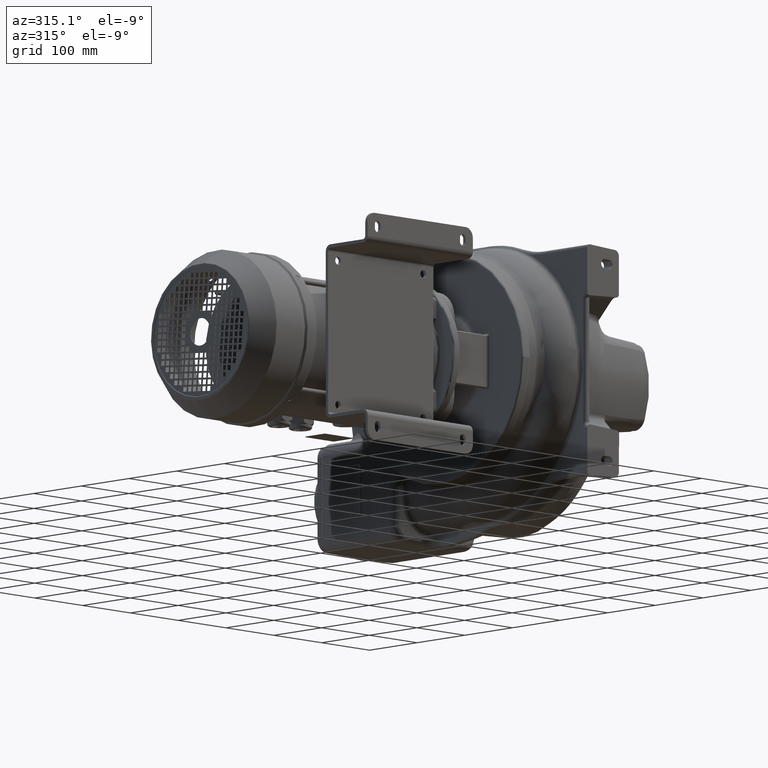
[diagram: clean part render]
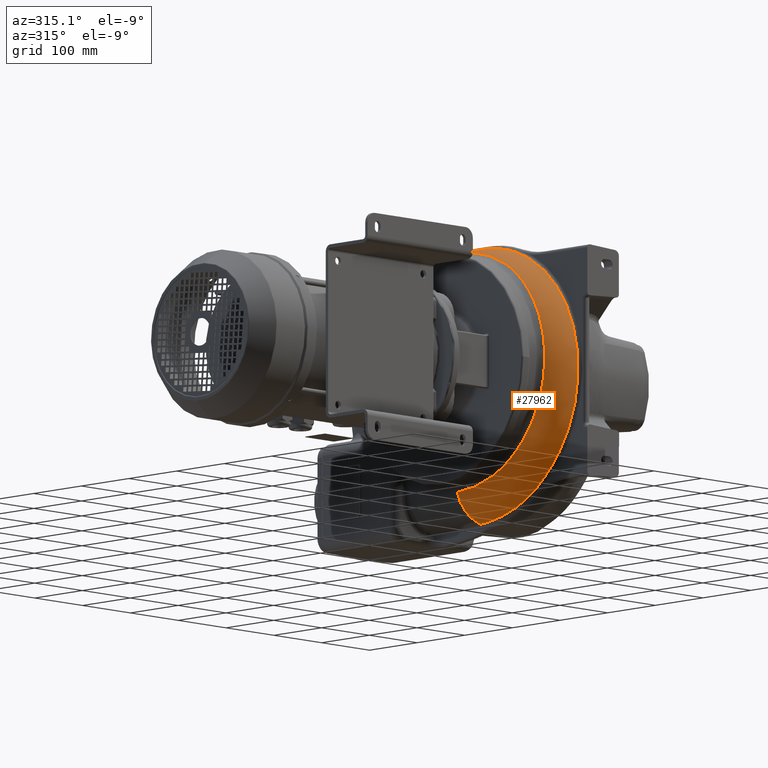
[diagram: same view with one face highlighted and labeled with its STEP entity id]
A machine part, auxiliary view. The second image highlights one B-rep face of the part: STEP entity #27962.
In plain terms, the highlighted face is a freeform B-spline surface patch.
Its self-contained STEP definition (entity closure, byte-faithful):
#3715=CARTESIAN_POINT('',(-9.416684251879E1,2.198767022094E2,
-1.995254930212E2));
#3716=CARTESIAN_POINT('',(-9.361539147830E1,2.198599892614E2,
-2.012862758722E2));
#3717=CARTESIAN_POINT('',(-9.159984907690E1,2.198035409127E2,
-2.068400769254E2));
#3718=CARTESIAN_POINT('',(-8.688004971270E1,2.197164609426E2,
-2.156669233408E2));
#3719=CARTESIAN_POINT('',(-7.911717179944E1,2.195961515524E2,
-2.251198556505E2));
#3720=CARTESIAN_POINT('',(-6.965939572615E1,2.194748036736E2,
-2.328752383668E2));
#3721=CARTESIAN_POINT('',(-5.886928424299E1,2.193577415574E2,
-2.386352686991E2));
#3722=CARTESIAN_POINT('',(-5.044815780028E1,2.193118446787E2,
-2.411865120035E2));
#3723=CARTESIAN_POINT('',(-4.581760230919E1,2.192862955119E2,
-2.420309093590E2));
#3724=CARTESIAN_POINT('',(-4.517971400711E1,2.192831059374E2,
-2.421368989397E2));
#3813=CARTESIAN_POINT('',(-4.520057652036E1,2.012945648818E2,
-2.403621677771E2));
#3814=CARTESIAN_POINT('',(-4.519806872358E1,2.033799629870E2,
-2.406536483446E2));
#3815=CARTESIAN_POINT('',(-4.519322657947E1,2.074877189616E2,
-2.411671713307E2));
#3816=CARTESIAN_POINT('',(-4.518565136657E1,2.134717536841E2,
-2.417547283081E2));
#3817=CARTESIAN_POINT('',(-4.518203252986E1,2.173920182448E2,
-2.420202553778E2));
#3818=CARTESIAN_POINT('',(-4.517971400711E1,2.192831059374E2,
-2.421368989397E2));
#3820=CARTESIAN_POINT('',(-9.416684251879E1,2.198767022094E2,
-1.995254930212E2));
#3821=CARTESIAN_POINT('',(-9.407725013904E1,2.100847109564E2,
-1.994574612186E2));
#3822=CARTESIAN_POINT('',(-9.389267116444E1,1.932970106015E2,
-1.981142767083E2));
#3823=CARTESIAN_POINT('',(-9.359536508671E1,1.665362472095E2,
-1.920103348928E2));
#3824=CARTESIAN_POINT('',(-9.327886241217E1,1.415711324878E2,
-1.820948290006E2));
#3825=CARTESIAN_POINT('',(-9.294028843835E1,1.182032656371E2,
-1.685462212619E2));
#3826=CARTESIAN_POINT('',(-9.257822733132E1,9.717046315025E1,
-1.516896110822E2));
#3827=CARTESIAN_POINT('',(-9.219000988661E1,7.887100707956E1,
-1.318869150503E2));
#3828=CARTESIAN_POINT('',(-9.177313388966E1,6.374473382465E1,
-1.096068029796E2));
#3829=CARTESIAN_POINT('',(-9.132463137844E1,5.210552734617E1,
-8.533870225543E1));
#3830=CARTESIAN_POINT('',(-9.084089528901E1,4.420298692060E1,
-5.958621988299E1));
#3831=CARTESIAN_POINT('',(-9.031899955044E1,4.022848769725E1,
-3.296378537401E1));
#3832=CARTESIAN_POINT('',(-8.975744364094E1,4.026581870603E1,
-6.070392006527E0));
#3833=CARTESIAN_POINT('',(-8.915387957186E1,4.430475179535E1,2.047330575376E1));
#3834=CARTESIAN_POINT('',(-8.850151632224E1,5.224524672189E1,4.610361602874E1));
#3835=CARTESIAN_POINT('',(-8.779252960426E1,6.392174821069E1,7.027381225204E1));
#3836=CARTESIAN_POINT('',(-8.701979466266E1,7.906017052550E1,9.241487978657E1));
#3837=CARTESIAN_POINT('',(-8.617376952138E1,9.732255229537E1,1.120408184767E2));
#3838=CARTESIAN_POINT('',(-8.524286933276E1,1.182812459213E2,1.287041734275E2));
#3839=CARTESIAN_POINT('',(-8.421119536122E1,1.414914967775E2,1.420580356226E2));
#3840=CARTESIAN_POINT('',(-8.305895518538E1,1.664351761190E2,1.517977795090E2));
#3841=CARTESIAN_POINT('',(-8.176548898402E1,1.925265317353E2,1.576970947774E2));
#3842=CARTESIAN_POINT('',(-8.077654001956E1,2.102873198188E2,1.589947476561E2));
#3843=CARTESIAN_POINT('',(-8.025156820779E1,2.191590052963E2,1.589754472696E2));
#3845=CARTESIAN_POINT('',(-8.025156820779E1,2.191590052963E2,1.589754472696E2));
#3846=CARTESIAN_POINT('',(-8.009205492426E1,2.218390739885E2,1.589703731581E2));
#3847=CARTESIAN_POINT('',(-7.976569099894E1,2.271965434280E2,1.588391042828E2));
#3848=CARTESIAN_POINT('',(-7.925284313603E1,2.352113116185E2,1.582804738650E2));
#3849=CARTESIAN_POINT('',(-7.871547152061E1,2.431903076760E2,1.573615123363E2));
#3850=CARTESIAN_POINT('',(-7.815242360165E1,2.511176945588E2,1.560842774233E2));
#3851=CARTESIAN_POINT('',(-7.762393087865E1,2.581404109317E2,1.546254338293E2));
#3852=CARTESIAN_POINT('',(-7.727639862865E1,2.625039264964E2,1.535454622422E2));
#3853=CARTESIAN_POINT('',(-7.713301338181E1,2.642652668738E2,1.530806877845E2));
#3855=CARTESIAN_POINT('',(-7.713301338181E1,2.642652668738E2,1.530806877845E2));
#3856=CARTESIAN_POINT('',(-7.437344202418E1,2.610861609744E2,1.555671932030E2));
#3857=CARTESIAN_POINT('',(-6.867019467310E1,2.547052451548E2,1.597645035352E2));
#3858=CARTESIAN_POINT('',(-5.977419080802E1,2.450742891012E2,1.641941496515E2));
#3859=CARTESIAN_POINT('',(-5.181119459627E1,2.363684395481E2,1.667766731549E2));
#3860=CARTESIAN_POINT('',(-4.721609365995E1,2.307161369092E2,1.676807851390E2));
#3861=CARTESIAN_POINT('',(-4.525928142582E1,2.279101150040E2,1.679816427398E2));
#3863=CARTESIAN_POINT('',(-4.525928142582E1,2.279101150040E2,1.679816427398E2));
#3864=CARTESIAN_POINT('',(-4.517867703848E1,2.257840720139E2,1.681920574513E2));
#3865=CARTESIAN_POINT('',(-4.503117790733E1,2.215792240930E2,1.685345958341E2));
#3866=CARTESIAN_POINT('',(-4.488593075591E1,2.154061194203E2,1.688299444850E2));
#3867=CARTESIAN_POINT('',(-4.485174359113E1,2.114137685214E2,1.688911636724E2));
#3868=CARTESIAN_POINT('',(-4.485005922300E1,2.094470320134E2,1.688909311784E2));
#3870=CARTESIAN_POINT('',(-4.485005922300E1,2.094470320134E2,1.688909311784E2));
#3871=CARTESIAN_POINT('',(-4.484387146770E1,2.022218077844E2,1.688900744136E2));
#3872=CARTESIAN_POINT('',(-4.483173071221E1,1.877422666248E2,1.680554965257E2));
#3873=CARTESIAN_POINT('',(-4.481333270458E1,1.662380591924E2,1.643152729931E2));
#3874=CARTESIAN_POINT('',(-4.480180580058E1,1.522025835402E2,1.601768030485E2));
#3875=CARTESIAN_POINT('',(-4.479582260635E1,1.453093788699E2,1.577072543905E2));
#3877=CARTESIAN_POINT('',(-4.479582260635E1,1.453093788699E2,1.577072543905E2));
#3878=CARTESIAN_POINT('',(-4.479325775293E1,1.423937004130E2,1.566626895949E2));
#3879=CARTESIAN_POINT('',(-4.497046870554E1,1.366542314917E2,1.544483818740E2));
#3880=CARTESIAN_POINT('',(-4.556609791123E1,1.280110821730E2,1.505952640485E2));
#3881=CARTESIAN_POINT('',(-4.578962231036E1,1.228956957141E2,1.480157151643E2));
#3882=CARTESIAN_POINT('',(-4.578681979600E1,1.204356040242E2,1.467180720611E2));
#3884=CARTESIAN_POINT('',(-4.578681979600E1,1.204356040242E2,1.467180720611E2));
#3885=CARTESIAN_POINT('',(-4.577761776077E1,1.124079814821E2,1.424836438297E2));
#3886=CARTESIAN_POINT('',(-4.575901251045E1,9.690946403487E1,1.328631765930E2));
#3887=CARTESIAN_POINT('',(-4.573055907554E1,7.581509609112E1,1.152485234600E2));
#3888=CARTESIAN_POINT('',(-4.570151436146E1,5.727037698843E1,9.474531880642E1));
#3889=CARTESIAN_POINT('',(-4.567187986935E1,4.165257167819E1,7.169874468006E1));
#3890=CARTESIAN_POINT('',(-4.564168671575E1,2.932279699128E1,4.656329763918E1));
#3891=CARTESIAN_POINT('',(-4.561103963234E1,2.055353767802E1,1.982183026193E1));
#3892=CARTESIAN_POINT('',(-4.557990539937E1,1.554102910481E1,
-8.021710706573E0));
#3893=CARTESIAN_POINT('',(-4.554824855636E1,1.441484463091E1,
-3.648569074103E1));
#3894=CARTESIAN_POINT('',(-4.551612757960E1,1.724574304191E1,
-6.500385393166E1));
#3895=CARTESIAN_POINT('',(-4.548357442695E1,2.401412308114E1,
-9.300919853171E1));
#3896=CARTESIAN_POINT('',(-4.545059984187E1,3.461797011246E1,
-1.199507205631E2));
#3897=CARTESIAN_POINT('',(-4.541725318537E1,4.888988157812E1,
-1.453220361131E2));
#3898=CARTESIAN_POINT('',(-4.538349465059E1,6.660967570012E1,
-1.686470183527E2));
#3899=CARTESIAN_POINT('',(-4.536073023286E1,8.050507949889E1,
-1.825059645238E2));
#3900=CARTESIAN_POINT('',(-4.534928334569E1,8.791316642398E1,
-1.889460815896E2));
#3902=CARTESIAN_POINT('',(-4.534928334569E1,8.791316642398E1,
-1.889460815896E2));
#3903=CARTESIAN_POINT('',(-4.534654674816E1,8.967963273930E1,
-1.904817203420E2));
#3904=CARTESIAN_POINT('',(-4.514845472029E1,9.328256395296E1,
-1.935499158603E2));
#3905=CARTESIAN_POINT('',(-4.466825781582E1,9.916722171992E1,
-1.982455629827E2));
#3906=CARTESIAN_POINT('',(-4.453229882786E1,1.030055370248E2,
-2.010694208428E2));
#3907=CARTESIAN_POINT('',(-4.453151828639E1,1.049358941290E2,
-2.024333619274E2));
#3909=CARTESIAN_POINT('',(-4.453151828639E1,1.049358941290E2,
-2.024333619274E2));
#3910=CARTESIAN_POINT('',(-4.452970029625E1,1.093365261585E2,
-2.055427315354E2));
#3911=CARTESIAN_POINT('',(-4.452596058482E1,1.183822813355E2,
-2.114422825591E2));
#3912=CARTESIAN_POINT('',(-4.452061017041E1,1.326052982714E2,
-2.192763210783E2));
#3913=CARTESIAN_POINT('',(-4.451742932346E1,1.424855075819E2,
-2.237960485444E2));
#3914=CARTESIAN_POINT('',(-4.451571365787E1,1.475110370816E2,
-2.258727182275E2));
#3916=CARTESIAN_POINT('',(-4.451571365787E1,1.475110370816E2,
-2.258727182275E2));
#3917=CARTESIAN_POINT('',(-4.451386507398E1,1.529611755041E2,
-2.281248256996E2));
#3918=CARTESIAN_POINT('',(-4.462261752965E1,1.642435068882E2,
-2.322628344673E2));
#3919=CARTESIAN_POINT('',(-4.502441863477E1,1.825368372572E2,
-2.372249815956E2));
#3920=CARTESIAN_POINT('',(-4.520816133803E1,1.949850637622E2,
-2.394802942276E2));
#3921=CARTESIAN_POINT('',(-4.520057652036E1,2.012945648818E2,
-2.403621677771E2));
#17989=VERTEX_POINT('',#3813);
#17990=VERTEX_POINT('',#3818);
#18311=VERTEX_POINT('',#3884);
#18312=VERTEX_POINT('',#3900);
#18399=VERTEX_POINT('',#3916);
#18401=VERTEX_POINT('',#3909);
#18403=VERTEX_POINT('',#3877);
#18405=VERTEX_POINT('',#3870);
#18407=VERTEX_POINT('',#3863);
#18494=VERTEX_POINT('',#3820);
#18495=VERTEX_POINT('',#3843);
#18509=VERTEX_POINT('',#3853);
#27553=CARTESIAN_POINT('',(-4.510989501510E1,2.727176717335E2,
1.578851870967E2));
#27554=CARTESIAN_POINT('',(-4.505236844996E1,2.689112312007E2,
1.592561862800E2));
#27555=CARTESIAN_POINT('',(-4.483876907299E1,2.546133604871E2,
1.638825184477E2));
#27556=CARTESIAN_POINT('',(-4.446902983124E1,2.290072147267E2,
1.688457478832E2));
#27557=CARTESIAN_POINT('',(-4.400063484999E1,1.960009638886E2,
1.693723045594E2));
#27558=CARTESIAN_POINT('',(-4.353217384073E1,1.634243431788E2,
1.641911856303E2));
#27559=CARTESIAN_POINT('',(-4.306367640090E1,1.322365154289E2,
1.535222720337E2));
#27560=CARTESIAN_POINT('',(-4.259517066088E1,1.033257861463E2,
1.377381736464E2));
#27561=CARTESIAN_POINT('',(-4.212668334364E1,7.748767489249E1,
1.173456464295E2));
#27562=CARTESIAN_POINT('',(-4.165823986841E1,5.540709039800E1,
9.296453629116E1));
#27563=CARTESIAN_POINT('',(-4.118986442526E1,3.764493958841E1,
6.530487689823E1));
#27564=CARTESIAN_POINT('',(-4.072158004449E1,2.462906781481E1,
3.514318060607E1));
#27565=CARTESIAN_POINT('',(-4.025340867129E1,1.664937016129E1,
3.298479926369E0));
#27566=CARTESIAN_POINT('',(-3.978537122974E1,1.385696340112E1,
-2.939114700380E1));
#27567=CARTESIAN_POINT('',(-3.931748768205E1,1.626700481138E1,
-6.209095609220E1));
#27568=CARTESIAN_POINT('',(-3.884977708635E1,2.376479803728E1,
-9.399036587234E1));
#27569=CARTESIAN_POINT('',(-3.838225765102E1,3.611477543578E1,
-1.243218235708E2));
#27570=CARTESIAN_POINT('',(-3.791494678273E1,5.297183281202E1,
-1.523773494827E2));
#27571=CARTESIAN_POINT('',(-3.744786114281E1,7.389474899020E1,
-1.775227073597E2));
#27572=CARTESIAN_POINT('',(-3.698101665648E1,9.836047961054E1,
-1.992084845077E2));
#27573=CARTESIAN_POINT('',(-3.651442867339E1,1.257812823902E2,
-2.169798609548E2));
#27574=CARTESIAN_POINT('',(-3.612583114413E1,1.505607114197E2,
-2.282295053292E2));
#27575=CARTESIAN_POINT('',(-3.581509588587E1,1.712089306404E2,
-2.349697692902E2));
#27576=CARTESIAN_POINT('',(-3.562094702944E1,1.843828739891E2,
-2.382226913911E2));
#27577=CARTESIAN_POINT('',(-3.546566538552E1,1.950437959484E2,
-2.402431921560E2));
#27578=CARTESIAN_POINT('',(-3.536863006717E1,2.017489624073E2,
-2.412608821561E2));
#27579=CARTESIAN_POINT('',(-3.529101124464E1,2.071254995849E2,
-2.419281446627E2));
#27580=CARTESIAN_POINT('',(-3.524250349161E1,2.104932580455E2,
-2.422856610714E2));
#27581=CARTESIAN_POINT('',(-3.520369997787E1,2.132096401217E2,
-2.425347167843E2));
#27582=CARTESIAN_POINT('',(-3.513184462691E1,2.182356166608E2,
-2.429430543580E2));
#27583=CARTESIAN_POINT('',(-3.506970046865E1,2.224027242105E2,
-2.431621307957E2));
#27584=CARTESIAN_POINT('',(-3.501725466826E1,2.257922388988E2,
-2.433813858669E2));
#27585=CARTESIAN_POINT('',(-4.817623398237E1,2.727089677562E2,
1.578829460107E2));
#27586=CARTESIAN_POINT('',(-4.812511076636E1,2.689025460377E2,
1.592537682985E2));
#27587=CARTESIAN_POINT('',(-4.793526230518E1,2.546047662382E2,
1.638794467270E2));
#27588=CARTESIAN_POINT('',(-4.760647030894E1,2.289989096945E2,
1.688415725060E2));
#27589=CARTESIAN_POINT('',(-4.718962160779E1,1.959932481692E2,
1.693668166374E2));
#27590=CARTESIAN_POINT('',(-4.677236881842E1,1.634174170862E2,
1.641844980300E2));
#27591=CARTESIAN_POINT('',(-4.635472029912E1,1.322305561050E2,
1.535145198874E2));
#27592=CARTESIAN_POINT('',(-4.593668479890E1,1.033209482329E2,
1.377295103177E2));
#27593=CARTESIAN_POINT('',(-4.551827047272E1,7.748409138057E1,
1.173362407821E2));
#27594=CARTESIAN_POINT('',(-4.509948545642E1,5.540487347608E1,
9.295457120568E1));
#27595=CARTESIAN_POINT('',(-4.468033775135E1,3.764418093045E1,
6.529454884438E1));
#27596=CARTESIAN_POINT('',(-4.426083499470E1,2.462983787365E1,
3.513269986518E1));
#27597=CARTESIAN_POINT('',(-4.384098466749E1,1.665171633764E1,
3.288071076151E0));
#27598=CARTESIAN_POINT('',(-4.342079406408E1,1.386090693511E1,
-2.940124485915E1));
#27599=CARTESIAN_POINT('',(-4.300027020851E1,1.627253647147E1,
-6.210048994581E1));
#27600=CARTESIAN_POINT('',(-4.257941987768E1,2.377187290877E1,
-9.399907077109E1));
#27601=CARTESIAN_POINT('',(-4.215824963748E1,3.612330727030E1,
-1.243294263170E2));
#27602=CARTESIAN_POINT('',(-4.173676574338E1,5.298168847297E1,
-1.523835743377E2));
#27603=CARTESIAN_POINT('',(-4.131497454222E1,7.390574383143E1,
-1.775272837070E2));
#27604=CARTESIAN_POINT('',(-4.089288088725E1,9.837237386213E1,
-1.992111566357E2));
#27605=CARTESIAN_POINT('',(-4.047049342658E1,1.257937808462E2,
-2.169803983120E2));
#27606=CARTESIAN_POINT('',(-4.011825592944E1,1.505734201581E2,
-2.282281046768E2));
#27607=CARTESIAN_POINT('',(-3.983633092248E1,1.712216080530E2,
-2.349667451448E2));
#27608=CARTESIAN_POINT('',(-3.966006294411E1,1.843954427390E2,
-2.382186313243E2));
#27609=CARTESIAN_POINT('',(-3.951901788184E1,1.950562224595E2,
-2.402382912287E2));
#27610=CARTESIAN_POINT('',(-3.943084944437E1,2.017612756538E2,
-2.412554510694E2));
#27611=CARTESIAN_POINT('',(-3.936030206659E1,2.071377099210E2,
-2.419222949177E2));
#27612=CARTESIAN_POINT('',(-3.931620703755E1,2.105053967835E2,
-2.422795484357E2));
#27613=CARTESIAN_POINT('',(-3.928093902809E1,2.132217089417E2,
-2.425283747920E2));
#27614=CARTESIAN_POINT('',(-3.921558566990E1,2.182475626829E2,
-2.429362972414E2));
#27615=CARTESIAN_POINT('',(-3.915913112947E1,2.224146735191E2,
-2.431552036013E2));
#27616=CARTESIAN_POINT('',(-3.911124155113E1,2.258042225120E2,
-2.433744312832E2));
#27617=CARTESIAN_POINT('',(-5.423147040671E1,2.725571166066E2,
1.575316432579E2));
#27618=CARTESIAN_POINT('',(-5.418930658605E1,2.687573494192E2,
1.588969213560E2));
#27619=CARTESIAN_POINT('',(-5.403271444659E1,2.544851645692E2,
1.635027112957E2));
#27620=CARTESIAN_POINT('',(-5.376141969812E1,2.289290701063E2,
1.684353422814E2));
#27621=CARTESIAN_POINT('',(-5.341726942071E1,1.959949143783E2,
1.689343978373E2));
#27622=CARTESIAN_POINT('',(-5.307257362699E1,1.634970486604E2,
1.637388134502E2));
#27623=CARTESIAN_POINT('',(-5.272732393855E1,1.323922349038E2,
1.530698758167E2));
#27624=CARTESIAN_POINT('',(-5.238151385678E1,1.035661091451E2,
1.373011581885E2));
#27625=CARTESIAN_POINT('',(-5.203513586931E1,7.781131199312E1,
1.169398744167E2));
#27626=CARTESIAN_POINT('',(-5.168818313380E1,5.580977149072E1,
9.260577753764E1));
#27627=CARTESIAN_POINT('',(-5.134064913995E1,3.811942035621E1,
6.500823394633E1));
#27628=CARTESIAN_POINT('',(-5.099252700157E1,2.516524897344E1,
3.492250177512E1));
#27629=CARTESIAN_POINT('',(-5.064381005702E1,1.723454541935E1,
3.165798441096E0));
#27630=CARTESIAN_POINT('',(-5.029449179635E1,1.447618636898E1,
-2.942611792321E1));
#27631=CARTESIAN_POINT('',(-4.994456560751E1,1.690356142206E1,
-6.202125026887E1));
#27632=CARTESIAN_POINT('',(-4.959402487134E1,2.440076629735E1,
-9.381208206431E1));
#27633=CARTESIAN_POINT('',(-4.924286309555E1,3.673164310911E1,
-1.240343152797E2));
#27634=CARTESIAN_POINT('',(-4.889107369064E1,5.355113986581E1,
-1.519832756459E2));
#27635=CARTESIAN_POINT('',(-4.853865114193E1,7.441871661292E1,
-1.770279407588E2));
#27636=CARTESIAN_POINT('',(-4.818558668235E1,9.881259721304E1,
-1.986218948353E2));
#27637=CARTESIAN_POINT('',(-4.783188298868E1,1.261468072917E2,
-2.163129741398E2));
#27638=CARTESIAN_POINT('',(-4.753657167029E1,1.508436392191E2,
-2.275072008173E2));
#27639=CARTESIAN_POINT('',(-4.730001623216E1,1.714207206276E2,
-2.342108826033E2));
#27640=CARTESIAN_POINT('',(-4.715201564764E1,1.845484595902E2,
-2.374443420186E2));
#27641=CARTESIAN_POINT('',(-4.703354479408E1,1.951713932060E2,
-2.394513416243E2));
#27642=CARTESIAN_POINT('',(-4.695946413003E1,2.018523853842E2,
-2.404614792618E2));
#27643=CARTESIAN_POINT('',(-4.690016817806E1,2.072098711402E2,
-2.411232963907E2));
#27644=CARTESIAN_POINT('',(-4.686310083418E1,2.105654416498E2,
-2.414775950188E2));
#27645=CARTESIAN_POINT('',(-4.683346953836E1,2.132707278446E2,
-2.417241080517E2));
#27646=CARTESIAN_POINT('',(-4.677848371641E1,2.182776638110E2,
-2.421281355454E2));
#27647=CARTESIAN_POINT('',(-4.673114117208E1,2.224433953760E2,
-2.423447614297E2));
#27648=CARTESIAN_POINT('',(-4.669049141834E1,2.258338705191E2,
-2.425616801271E2));
#27649=CARTESIAN_POINT('',(-6.297148831498E1,2.719842718348E2,
1.561155923470E2));
#27650=CARTESIAN_POINT('',(-6.293534608689E1,2.682125478818E2,
1.574621649303E2));
#27651=CARTESIAN_POINT('',(-6.280110261188E1,2.540473002073E2,
1.620016285063E2));
#27652=CARTESIAN_POINT('',(-6.256843614704E1,2.286932036395E2,
1.668409000678E2));
#27653=CARTESIAN_POINT('',(-6.227314447277E1,1.960391259347E2,
1.672671309992E2));
#27654=CARTESIAN_POINT('',(-6.197726763792E1,1.638375418206E2,
1.620486683290E2));
#27655=CARTESIAN_POINT('',(-6.168082182047E1,1.330363275438E2,
1.514099272572E2));
#27656=CARTESIAN_POINT('',(-6.138382586725E1,1.045116967038E2,
1.357260655316E2));
#27657=CARTESIAN_POINT('',(-6.108629536647E1,7.904650908389E1,
1.155041947371E2));
#27658=CARTESIAN_POINT('',(-6.078824576118E1,5.731289924576E1,
9.136219295361E1));
#27659=CARTESIAN_POINT('',(-6.048969158537E1,3.985932377344E1,
6.400576004187E1));
#27660=CARTESIAN_POINT('',(-6.019064495140E1,2.710194915129E1,
3.420470226055E1));
#27661=CARTESIAN_POINT('',(-5.989111673620E1,1.932027528319E1,
2.769130330352E0));
#27662=CARTESIAN_POINT('',(-5.959111659751E1,1.665676802387E1,
-2.947374044231E1));
#27663=CARTESIAN_POINT('',(-5.929065263002E1,1.912007539670E1,
-6.170161452685E1));
#27664=CARTESIAN_POINT('',(-5.898973181906E1,2.659145058619E1,
-9.311746583043E1));
#27665=CARTESIAN_POINT('',(-5.868836054324E1,3.883392463748E1,
-1.229678572161E2));
#27666=CARTESIAN_POINT('',(-5.838654450481E1,5.550369273911E1,
-1.505589040213E2));
#27667=CARTESIAN_POINT('',(-5.808429083864E1,7.616342628706E1,
-1.752698626249E2));
#27668=CARTESIAN_POINT('',(-5.778160136348E1,1.002963505077E2,
-1.965637094281E2));
#27669=CARTESIAN_POINT('',(-5.747849596575E1,1.273229578706E2,
-2.139964327972E2));
#27670=CARTESIAN_POINT('',(-5.722553399785E1,1.517310699690E2,
-2.250158098050E2));
#27671=CARTESIAN_POINT('',(-5.702299271166E1,1.720618210998E2,
-2.316063627705E2));
#27672=CARTESIAN_POINT('',(-5.689629413229E1,1.850304392397E2,
-2.347807352592E2));
#27673=CARTESIAN_POINT('',(-5.679490243692E1,1.955230322189E2,
-2.367475106254E2));
#27674=CARTESIAN_POINT('',(-5.673150978341E1,2.021212669965E2,
-2.377355147127E2));
#27675=CARTESIAN_POINT('',(-5.668077097707E1,2.074136126190E2,
-2.383815871329E2));
#27676=CARTESIAN_POINT('',(-5.664904429394E1,2.107276314463E2,
-2.387266897971E2));
#27677=CARTESIAN_POINT('',(-5.662369218585E1,2.133951862998E2,
-2.389660910762E2));
#27678=CARTESIAN_POINT('',(-5.657667069121E1,2.183368003265E2,
-2.393581158554E2));
#27679=CARTESIAN_POINT('',(-5.653644036902E1,2.224966777805E2,
-2.395673068538E2));
#27680=CARTESIAN_POINT('',(-5.650121621780E1,2.258911386894E2,
-2.397763283827E2));
#27681=CARTESIAN_POINT('',(-7.131167052980E1,2.710635589171E2,
1.538014686552E2));
#27682=CARTESIAN_POINT('',(-7.127988061870E1,2.673383311497E2,
1.551193920903E2));
#27683=CARTESIAN_POINT('',(-7.116174680981E1,2.533499042810E2,
1.595577631675E2));
#27684=CARTESIAN_POINT('',(-7.095663444170E1,2.283267025511E2,
1.642579563553E2));
#27685=CARTESIAN_POINT('',(-7.069560787476E1,1.961258959211E2,
1.645825493885E2));
#27686=CARTESIAN_POINT('',(-7.043333680853E1,1.643986218226E2,
1.593430212976E2));
#27687=CARTESIAN_POINT('',(-7.016981213231E1,1.340785104135E2,
1.487675808888E2));
#27688=CARTESIAN_POINT('',(-6.990503067507E1,1.060269256849E2,
1.332327251137E2));
#27689=CARTESIAN_POINT('',(-6.963898577512E1,8.101155702329E1,
1.132442722443E2));
#27690=CARTESIAN_POINT('',(-6.937167164336E1,5.968958548698E1,
8.941608689511E1));
#27691=CARTESIAN_POINT('',(-6.910308207006E1,4.259523382601E1,
6.244715277989E1));
#27692=CARTESIAN_POINT('',(-6.883320792082E1,3.013165529117E1,
3.309791272798E1));
#27693=CARTESIAN_POINT('',(-6.856203901547E1,2.256712323666E1,
2.166710868974E0));
#27694=CARTESIAN_POINT('',(-6.828956444551E1,2.003515563982E1,
-2.953303346498E1));
#27695=CARTESIAN_POINT('',(-6.801577233436E1,2.253813904847E1,
-6.119439382752E1));
#27696=CARTESIAN_POINT('',(-6.774065095179E1,2.995405821250E1,
-9.203669808412E1));
#27697=CARTESIAN_POINT('',(-6.746418982281E1,4.204582279788E1,
-1.213231960234E2));
#27698=CARTESIAN_POINT('',(-6.718638009034E1,5.847264582133E1,
-1.483763467665E2));
#27699=CARTESIAN_POINT('',(-6.690721731537E1,7.880316461511E1,
-1.725907450185E2));
#27700=CARTESIAN_POINT('',(-6.662669353307E1,1.025292123872E2,
-1.934431448127E2));
#27701=CARTESIAN_POINT('',(-6.634482475867E1,1.290819944448E2,
-2.105012378988E2));
#27702=CARTESIAN_POINT('',(-6.610877666028E1,1.530499445746E2,
-2.212719880884E2));
#27703=CARTESIAN_POINT('',(-6.591930403500E1,1.730078519737E2,
-2.277050689156E2));
#27704=CARTESIAN_POINT('',(-6.580057459056E1,1.857367244506E2,
-2.307988830883E2));
#27705=CARTESIAN_POINT('',(-6.570544158140E1,1.960336197484E2,
-2.327119879340E2));
#27706=CARTESIAN_POINT('',(-6.564591329591E1,2.025078698746E2,
-2.336710243837E2));
#27707=CARTESIAN_POINT('',(-6.559824199432E1,2.077027252620E2,
-2.342968785699E2));
#27708=CARTESIAN_POINT('',(-6.556840069522E1,2.109547718436E2,
-2.346303530037E2));
#27709=CARTESIAN_POINT('',(-6.554453699108E1,2.135662332113E2,
-2.348608702260E2));
#27710=CARTESIAN_POINT('',(-6.550040636381E1,2.184096721632E2,
-2.352379828945E2));
#27711=CARTESIAN_POINT('',(-6.546283207832E1,2.225587382393E2,
-2.354383896054E2));
#27712=CARTESIAN_POINT('',(-6.542935555260E1,2.259603819810E2,
-2.356376823909E2));
#27713=CARTESIAN_POINT('',(-7.910064499128E1,2.697538679649E2,
1.504653867690E2));
#27714=CARTESIAN_POINT('',(-7.907390225309E1,2.660961050631E2,
1.517431824619E2));
#27715=CARTESIAN_POINT('',(-7.897431476220E1,2.523639934095E2,
1.560403700374E2));
#27716=CARTESIAN_POINT('',(-7.880009555494E1,2.278187200917E2,
1.605491079486E2));
#27717=CARTESIAN_POINT('',(-7.857614220814E1,1.962688705711E2,
1.607399746064E2));
#27718=CARTESIAN_POINT('',(-7.834905837704E1,1.652186910795E2,
1.554831683456E2));
#27719=CARTESIAN_POINT('',(-7.811899431479E1,1.355810255232E2,
1.450111525401E2));
#27720=CARTESIAN_POINT('',(-7.788609936683E1,1.081959225636E2,
1.297010667398E2));
#27721=CARTESIAN_POINT('',(-7.765050931260E1,8.380965334321E1,
1.100556037041E2));
#27722=CARTESIAN_POINT('',(-7.741235187573E1,6.305863157650E1,
8.668170457460E1));
#27723=CARTESIAN_POINT('',(-7.717174534837E1,4.645764563853E1,
6.026774269683E1));
#27724=CARTESIAN_POINT('',(-7.692879550759E1,3.439240786325E1,
3.156001931914E1));
#27725=CARTESIAN_POINT('',(-7.668359873378E1,2.711647713148E1,
1.339607268278E0));
#27726=CARTESIAN_POINT('',(-7.643624334598E1,2.475200312856E1,
-2.959991061345E1));
#27727=CARTESIAN_POINT('',(-7.618681015487E1,2.729384689711E1,
-6.047334752765E1));
#27728=CARTESIAN_POINT('',(-7.593537489611E1,3.461666498075E1,
-9.052284778981E1));
#27729=CARTESIAN_POINT('',(-7.568201048403E1,4.648438161377E1,
-1.190346565364E2));
#27730=CARTESIAN_POINT('',(-7.542678833599E1,6.256149495777E1,
-1.453534907770E2));
#27731=CARTESIAN_POINT('',(-7.516978177563E1,8.242587945395E1,
-1.688945797522E2));
#27732=CARTESIAN_POINT('',(-7.491105847584E1,1.055820946968E2,
-1.891529613144E2));
#27733=CARTESIAN_POINT('',(-7.465070728462E1,1.314767770371E2,
-2.057115956019E2));
#27734=CARTESIAN_POINT('',(-7.443241456910E1,1.548375979338E2,
-2.161549845745E2));
#27735=CARTESIAN_POINT('',(-7.425707268859E1,1.742835975064E2,
-2.223835155854E2));
#27736=CARTESIAN_POINT('',(-7.414715327564E1,1.866842456361E2,
-2.253740855021E2));
#27737=CARTESIAN_POINT('',(-7.405905444391E1,1.967138052966E2,
-2.272193888203E2));
#27738=CARTESIAN_POINT('',(-7.400392138699E1,2.030188963952E2,
-2.281423089223E2));
#27739=CARTESIAN_POINT('',(-7.395977377058E1,2.080807782680E2,
-2.287432841947E2));
#27740=CARTESIAN_POINT('',(-7.393211330552E1,2.112485822264E2,
-2.290626223909E2));
#27741=CARTESIAN_POINT('',(-7.390997106314E1,2.137840304685E2,
-2.292824497166E2));
#27742=CARTESIAN_POINT('',(-7.386921759692E1,2.184926861163E2,
-2.296415981590E2));
#27743=CARTESIAN_POINT('',(-7.383464867758E1,2.226239154083E2,
-2.298317851995E2));
#27744=CARTESIAN_POINT('',(-7.380346767580E1,2.260372095810E2,
-2.300193521268E2));
#27745=CARTESIAN_POINT('',(-8.493556572348E1,2.682789070696E2,
1.466425225511E2));
#27746=CARTESIAN_POINT('',(-8.491465516828E1,2.646986448286E2,
1.478749468178E2));
#27747=CARTESIAN_POINT('',(-8.483656952984E1,2.512608985620E2,
1.520127640947E2));
#27748=CARTESIAN_POINT('',(-8.469863153120E1,2.272638433289E2,
1.563071825554E2));
#27749=CARTESIAN_POINT('',(-8.451911353423E1,1.964588302140E2,
1.563524510227E2));
#27750=CARTESIAN_POINT('',(-8.433513156549E1,1.661810914131E2,
1.510840370546E2));
#27751=CARTESIAN_POINT('',(-8.414699702949E1,1.373193730989E2,
1.407384710826E2));
#27752=CARTESIAN_POINT('',(-8.395500052123E1,1.106892940597E2,
1.256927695105E2));
#27753=CARTESIAN_POINT('',(-8.375940017788E1,8.701284993205E1,
1.064452211974E2));
#27754=CARTESIAN_POINT('',(-8.356042896227E1,6.690316084568E1,
8.359412517910E1));
#27755=CARTESIAN_POINT('',(-8.335829517867E1,5.085343295038E1,
5.781515826991E1));
#27756=CARTESIAN_POINT('',(-8.315318067657E1,3.923020521369E1,
2.983809240648E1));
#27757=CARTESIAN_POINT('',(-8.294524597771E1,3.227104129379E1,
4.241139535416E-1));
#27758=CARTESIAN_POINT('',(-8.273463356269E1,3.008591871136E1,
-2.965579601225E1));
#27759=CARTESIAN_POINT('',(-8.252147007893E1,3.266186156880E1,
-5.964102851047E1));
#27760=CARTESIAN_POINT('',(-8.230587049419E1,3.987038500334E1,
-8.879936974194E1));
#27761=CARTESIAN_POINT('',(-8.208794179812E1,5.147710296253E1,
-1.164427848891E2));
#27762=CARTESIAN_POINT('',(-8.186778559655E1,6.715293653660E1,
-1.419407855119E2));
#27763=CARTESIAN_POINT('',(-8.164550199375E1,8.648654819396E1,
-1.647314979197E2));
#27764=CARTESIAN_POINT('',(-8.142118384602E1,1.089971348064E2,
-1.843301651574E2));
#27765=CARTESIAN_POINT('',(-8.119493920263E1,1.341489240007E2,
-2.003365266387E2));
#27766=CARTESIAN_POINT('',(-8.100484224214E1,1.568264681378E2,
-2.104201863970E2));
#27767=CARTESIAN_POINT('',(-8.085191978121E1,1.756975083443E2,
-2.164255535237E2));
#27768=CARTESIAN_POINT('',(-8.075596495198E1,1.877299704320E2,
-2.193043136256E2));
#27769=CARTESIAN_POINT('',(-8.067900161273E1,1.974599603063E2,
-2.210767980613E2));
#27770=CARTESIAN_POINT('',(-8.063081715504E1,2.035755855237E2,
-2.219612254960E2));
#27771=CARTESIAN_POINT('',(-8.059222789418E1,2.084884792051E2,
-2.225358858327E2));
#27772=CARTESIAN_POINT('',(-8.056802847707E1,2.115622210795E2,
-2.228403971704E2));
#27773=CARTESIAN_POINT('',(-8.054863432507E1,2.140130690398E2,
-2.230491001250E2));
#27774=CARTESIAN_POINT('',(-8.051308867110E1,2.185693847573E2,
-2.233894577642E2));
#27775=CARTESIAN_POINT('',(-8.048296018392E1,2.226768486900E2,
-2.235691580572E2));
#27776=CARTESIAN_POINT('',(-8.045563772681E1,2.261054406869E2,
-2.237443069142E2));
#27777=CARTESIAN_POINT('',(-8.903268079654E1,2.668339390899E2,
1.428283141077E2));
#27778=CARTESIAN_POINT('',(-8.901638089537E1,2.633312389787E2,
1.440164988743E2));
#27779=CARTESIAN_POINT('',(-8.895540688845E1,2.501878614926E2,
1.479991509995E2));
#27780=CARTESIAN_POINT('',(-8.884708109132E1,2.267375817695E2,
1.520863750148E2));
#27781=CARTESIAN_POINT('',(-8.870523309856E1,1.966731555053E2,
1.519940052444E2));
#27782=CARTESIAN_POINT('',(-8.855921480484E1,1.671616677085E2,
1.467202452815E2));
#27783=CARTESIAN_POINT('',(-8.840943666331E1,1.390684086863E2,
1.365052598479E2));
#27784=CARTESIAN_POINT('',(-8.825626221450E1,1.131852891580E2,
1.217257432597E2));
#27785=CARTESIAN_POINT('',(-8.810000285814E1,9.021075348729E1,
1.028756173862E2));
#27786=CARTESIAN_POINT('',(-8.794092814535E1,7.073528218459E1,
8.054479415486E1));
#27787=CARTESIAN_POINT('',(-8.777926996261E1,5.523102032956E1,
5.539668346008E1));
#27788=CARTESIAN_POINT('',(-8.761522363237E1,4.404568275021E1,
2.814507974091E1));
#27789=CARTESIAN_POINT('',(-8.744895507437E1,3.740099103250E1,
-4.681074234336E-1));
#27790=CARTESIAN_POINT('',(-8.728060606795E1,3.539470729150E1,
-2.969389697574E1));
#27791=CARTESIAN_POINT('',(-8.711029812702E1,3.800579917592E1,
-5.879572191324E1));
#27792=CARTESIAN_POINT('',(-8.693813791953E1,4.510228011351E1,
-8.706658783293E1));
#27793=CARTESIAN_POINT('',(-8.676422200196E1,5.645099931798E1,
-1.138439030120E2));
#27794=CARTESIAN_POINT('',(-8.658864035067E1,7.172880478060E1,
-1.385218572625E2));
#27795=CARTESIAN_POINT('',(-8.641148043169E1,9.053465881248E1,
-1.605615146661E2));
#27796=CARTESIAN_POINT('',(-8.623282351248E1,1.124019648861E2,
-1.794985054137E2));
#27797=CARTESIAN_POINT('',(-8.605276194003E1,1.368121895920E2,
-1.949496394700E2));
#27798=CARTESIAN_POINT('',(-8.590158293716E1,1.588065325278E2,
-2.046705867539E2));
#27799=CARTESIAN_POINT('',(-8.578003673383E1,1.771019813789E2,
-2.104502971801E2));
#27800=CARTESIAN_POINT('',(-8.570380056264E1,1.887655752432E2,
-2.132156823084E2));
#27801=CARTESIAN_POINT('',(-8.564266888459E1,1.981953110137E2,
-2.149141284071E2));
#27802=CARTESIAN_POINT('',(-8.560440498237E1,2.041209436955E2,
-2.157593115458E2));
#27803=CARTESIAN_POINT('',(-8.557377011588E1,2.088842957517E2,
-2.163070541923E2));
#27804=CARTESIAN_POINT('',(-8.555455009562E1,2.118638731244E2,
-2.165963878335E2));
#27805=CARTESIAN_POINT('',(-8.553913440543E1,2.142302357215E2,
-2.167937148481E2));
#27806=CARTESIAN_POINT('',(-8.551098750686E1,2.186322628015E2,
-2.171147018929E2));
#27807=CARTESIAN_POINT('',(-8.548714439834E1,2.227129293762E2,
-2.172833464533E2));
#27808=CARTESIAN_POINT('',(-8.546544059459E1,2.261584762881E2,
-2.174453297553E2));
#27809=CARTESIAN_POINT('',(-9.176329044380E1,2.655981600086E2,
1.395208055217E2));
#27810=CARTESIAN_POINT('',(-9.174967890358E1,2.621633542491E2,
1.406727065102E2));
#27811=CARTESIAN_POINT('',(-9.169876927500E1,2.492771248516E2,
1.445286576783E2));
#27812=CARTESIAN_POINT('',(-9.160843440971E1,2.263010858701E2,
1.484502824516E2));
#27813=CARTESIAN_POINT('',(-9.149056986496E1,1.968732704631E2,
1.482554388515E2));
#27814=CARTESIAN_POINT('',(-9.136981980025E1,1.680155861455E2,
1.429913554786E2));
#27815=CARTESIAN_POINT('',(-9.124665040174E1,1.405740597590E2,
1.329000489898E2));
#27816=CARTESIAN_POINT('',(-9.112145584485E1,1.153214071837E2,
1.183570431239E2));
#27817=CARTESIAN_POINT('',(-9.099456224450E1,9.293716708933E1,
9.985202857677E1));
#27818=CARTESIAN_POINT('',(-9.086624161874E1,7.399372743837E1,
7.796765352767E1));
#27819=CARTESIAN_POINT('',(-9.073671992752E1,5.894640941546E1,
5.335712367456E1));
#27820=CARTESIAN_POINT('',(-9.060618109810E1,4.812784136455E1,
2.672118313405E1));
#27821=CARTESIAN_POINT('',(-9.047477553387E1,4.174695637345E1,
-1.213874719072E0));
#27822=CARTESIAN_POINT('',(-9.034262663291E1,3.989152523577E1,
-2.971684379723E1));
#27823=CARTESIAN_POINT('',(-9.020983568626E1,4.253374997968E1,
-5.807059962266E1));
#27824=CARTESIAN_POINT('',(-9.007648782313E1,4.953844013226E1,
-8.558861070789E1));
#27825=CARTESIAN_POINT('',(-8.994265713970E1,6.067297922966E1,
-1.116290400158E2));
#27826=CARTESIAN_POINT('',(-8.980841061184E1,7.561849012992E1,
-1.356063548616E2));
#27827=CARTESIAN_POINT('',(-8.967381200775E1,9.398173427644E1,
-1.570006464559E2));
#27828=CARTESIAN_POINT('',(-8.953891971943E1,1.153071096777E2,
-1.753646733762E2));
#27829=CARTESIAN_POINT('',(-8.940379957660E1,1.390895948984E2,
-1.903298457931E2));
#27830=CARTESIAN_POINT('',(-8.929103876021E1,1.605025548172E2,
-1.997282248366E2));
#27831=CARTESIAN_POINT('',(-8.920078578187E1,1.783060028325E2,
-2.053035078895E2));
#27832=CARTESIAN_POINT('',(-8.914434544531E1,1.896533244440E2,
-2.079642244495E2));
#27833=CARTESIAN_POINT('',(-8.909918600511E1,1.988250067999E2,
-2.095929157296E2));
#27834=CARTESIAN_POINT('',(-8.907096188660E1,2.045870571364E2,
-2.104004109494E2));
#27835=CARTESIAN_POINT('',(-8.904839313842E1,2.092214311175E2,
-2.109217775637E2));
#27836=CARTESIAN_POINT('',(-8.903423594011E1,2.121198867164E2,
-2.111960236183E2));
#27837=CARTESIAN_POINT('',(-8.902287768114E1,2.144135488582E2,
-2.113819308823E2));
#27838=CARTESIAN_POINT('',(-8.900222488362E1,2.186813536942E2,
-2.116831612988E2));
#27839=CARTESIAN_POINT('',(-8.898475953937E1,2.227371033780E2,
-2.118395888162E2));
#27840=CARTESIAN_POINT('',(-8.896879867354E1,2.261984623343E2,
-2.119877569397E2));
#27841=CARTESIAN_POINT('',(-9.392034070598E1,2.642839695367E2,
1.359590041575E2));
#27842=CARTESIAN_POINT('',(-9.391073087890E1,2.609220017216E2,
1.370714834778E2));
#27843=CARTESIAN_POINT('',(-9.387483860712E1,2.483117387943E2,
1.407894892798E2));
#27844=CARTESIAN_POINT('',(-9.381146080872E1,2.258454874175E2,
1.445289316341E2));
#27845=CARTESIAN_POINT('',(-9.372927420860E1,1.971043465831E2,
1.442173905381E2));
#27846=CARTESIAN_POINT('',(-9.364551435417E1,1.689546465514E2,
1.389569470016E2));
#27847=CARTESIAN_POINT('',(-9.356045608778E1,1.422217894019E2,
1.289926872385E2));
#27848=CARTESIAN_POINT('',(-9.347432685210E1,1.176575935170E2,
1.146998836646E2));
#27849=CARTESIAN_POINT('',(-9.338731018901E1,9.592072294895E1,
9.656452591737E1));
#27850=CARTESIAN_POINT('',(-9.329955528767E1,7.756335818679E1,
7.516208944756E1));
#27851=CARTESIAN_POINT('',(-9.321118268411E1,6.302184402795E1,
5.113520399075E1));
#27852=CARTESIAN_POINT('',(-9.312228670741E1,5.261164191775E1,
2.517072903758E1));
#27853=CARTESIAN_POINT('',(-9.303294128617E1,4.652699396143E1,
-2.021923107583E0));
#27854=CARTESIAN_POINT('',(-9.294320449103E1,4.484404548694E1,
-2.973096429583E1));
#27855=CARTESIAN_POINT('',(-9.285312192164E1,4.752694154885E1,
-5.726066695823E1));
#27856=CARTESIAN_POINT('',(-9.276273094614E1,5.443639592478E1,
-8.394714486088E1));
#27857=CARTESIAN_POINT('',(-9.267206440982E1,6.533986930752E1,
-1.091716349594E2));
#27858=CARTESIAN_POINT('',(-9.258115349403E1,7.992275188665E1,
-1.323712440749E2));
#27859=CARTESIAN_POINT('',(-9.249003040287E1,9.780003504867E1,
-1.530473986664E2));
#27860=CARTESIAN_POINT('',(-9.239872703366E1,1.185279615273E2,
-1.707721579892E2));
#27861=CARTESIAN_POINT('',(-9.230728285138E1,1.416162175758E2,
-1.851934795478E2));
#27862=CARTESIAN_POINT('',(-9.223098081148E1,1.623845432436E2,
-1.942294682731E2));
#27863=CARTESIAN_POINT('',(-9.216991427353E1,1.796415018433E2,
-1.995741749326E2));
#27864=CARTESIAN_POINT('',(-9.213172927716E1,1.906371405625E2,
-2.021163806372E2));
#27865=CARTESIAN_POINT('',(-9.210117715740E1,1.995216803947E2,
-2.036657867050E2));
#27866=CARTESIAN_POINT('',(-9.208208369562E1,2.051015916525E2,
-2.044302889384E2));
#27867=CARTESIAN_POINT('',(-9.206681825958E1,2.095922187765E2,
-2.049214520819E2));
#27868=CARTESIAN_POINT('',(-9.205723927892E1,2.124004557869E2,
-2.051783855792E2));
#27869=CARTESIAN_POINT('',(-9.204954895507E1,2.146134459822E2,
-2.053511707613E2));
#27870=CARTESIAN_POINT('',(-9.203560409504E1,2.187304343981E2,
-2.056296115275E2));
#27871=CARTESIAN_POINT('',(-9.202379208817E1,2.227562858391E2,
-2.057717934922E2));
#27872=CARTESIAN_POINT('',(-9.201301445027E1,2.262365310323E2,
-2.059038182437E2));
#27873=CARTESIAN_POINT('',(-9.498401655478E1,2.633849604091E2,
1.335037127903E2));
#27874=CARTESIAN_POINT('',(-9.497768301634E1,2.600720534014E2,
1.345859952990E2));
#27875=CARTESIAN_POINT('',(-9.495402973830E1,2.476484831360E2,
1.381973420353E2));
#27876=CARTESIAN_POINT('',(-9.491225663919E1,2.255324799072E2,
1.417895117389E2));
#27877=CARTESIAN_POINT('',(-9.485799727503E1,1.972729156812E2,
1.413699776845E2));
#27878=CARTESIAN_POINT('',(-9.480255445325E1,1.696288170369E2,
1.360873074526E2));
#27879=CARTESIAN_POINT('',(-9.474606604601E1,1.434102252178E2,
1.261912799515E2));
#27880=CARTESIAN_POINT('',(-9.468864907034E1,1.193527987661E2,
1.120591028244E2));
#27881=CARTESIAN_POINT('',(-9.463039903510E1,9.809860227009E1,
9.417574319904E1));
#27882=CARTESIAN_POINT('',(-9.457139416970E1,8.018339923544E1,
7.311261895462E1));
#27883=CARTESIAN_POINT('',(-9.451169775916E1,6.602785639932E1,
4.950528926775E1));
#27884=CARTESIAN_POINT('',(-9.445135848387E1,5.593305852144E1,
2.403060528506E1));
#27885=CARTESIAN_POINT('',(-9.439041350185E1,5.008078479263E1,
-2.614704372523E0));
#27886=CARTESIAN_POINT('',(-9.432889089940E1,4.853717174361E1,
-2.973381703691E1));
#27887=CARTESIAN_POINT('',(-9.426681146875E1,5.125926789568E1,
-5.664776678782E1));
#27888=CARTESIAN_POINT('',(-9.420419122532E1,5.810395790603E1,
-8.271059739721E1));
#27889=CARTESIAN_POINT('',(-9.414104365701E1,6.883833910877E1,
-1.073219412885E2));
#27890=CARTESIAN_POINT('',(-9.407738145807E1,8.315093557243E1,
-1.299370266365E2));
#27891=CARTESIAN_POINT('',(-9.401321814795E1,1.006631942390E2,
-1.500743813374E2));
#27892=CARTESIAN_POINT('',(-9.394856704641E1,1.209408533842E2,
-1.673215131561E2));
#27893=CARTESIAN_POINT('',(-9.388344623465E1,1.435055167593E2,
-1.813395517199E2));
#27894=CARTESIAN_POINT('',(-9.382879287460E1,1.637882539090E2,
-1.901103174614E2));
#27895=CARTESIAN_POINT('',(-9.378485661886E1,1.806344672133E2,
-1.952890651044E2));
#27896=CARTESIAN_POINT('',(-9.375730121857E1,1.913662715238E2,
-1.977474472572E2));
#27897=CARTESIAN_POINT('',(-9.373520323713E1,2.000357891027E2,
-1.992418455027E2));
#27898=CARTESIAN_POINT('',(-9.372137214751E1,2.054794639927E2,
-1.999770492053E2));
#27899=CARTESIAN_POINT('',(-9.371030166278E1,2.098626220295E2,
-2.004480056713E2));
#27900=CARTESIAN_POINT('',(-9.370334948829E1,2.126035927603E2,
-2.006935268969E2));
#27901=CARTESIAN_POINT('',(-9.369776334610E1,2.147566051007E2,
-2.008577567804E2));
#27902=CARTESIAN_POINT('',(-9.368763709548E1,2.187602902185E2,
-2.011215088420E2));
#27903=CARTESIAN_POINT('',(-9.367903182892E1,2.227628707386E2,
-2.012551312154E2));
#27904=CARTESIAN_POINT('',(-9.367120536224E1,2.262573407689E2,
-2.013767306148E2));
#27905=CARTESIAN_POINT('',(-9.541529299096E1,2.629416964095E2,
1.322840481684E2));
#27906=CARTESIAN_POINT('',(-9.541024782326E1,2.596531916422E2,
1.333515275430E2));
#27907=CARTESIAN_POINT('',(-9.539141008882E1,2.473224266391E2,
1.369106060070E2));
#27908=CARTESIAN_POINT('',(-9.535815992472E1,2.253802205833E2,
1.404306942959E2));
#27909=CARTESIAN_POINT('',(-9.531497768099E1,1.973592739620E2,
1.399584113863E2));
#27910=CARTESIAN_POINT('',(-9.527083961279E1,1.699655961734E2,
1.346650552548E2));
#27911=CARTESIAN_POINT('',(-9.522583959210E1,1.440018369521E2,
1.248027570206E2));
#27912=CARTESIAN_POINT('',(-9.518005827395E1,1.201958372505E2,
1.107497935109E2));
#27913=CARTESIAN_POINT('',(-9.513356166814E1,9.918156872492E1,
9.299079871748E1));
#27914=CARTESIAN_POINT('',(-9.508640382107E1,8.148671894E1,7.209539176981E1));
#27915=CARTESIAN_POINT('',(-9.503862822051E1,6.752416364319E1,
4.869584956978E1));
#27916=CARTESIAN_POINT('',(-9.499026765083E1,5.758776335554E1,
2.346426637446E1));
#27917=CARTESIAN_POINT('',(-9.494134639652E1,5.185295500987E1,
-2.908755465231E0));
#27918=CARTESIAN_POINT('',(-9.489188201797E1,5.038070146006E1,
-2.973371298374E1));
#27919=CARTESIAN_POINT('',(-9.484188662352E1,5.312429668198E1,
-5.633992423124E1));
#27920=CARTESIAN_POINT('',(-9.479136879037E1,5.993849109217E1,
-8.209037281308E1));
#27921=CARTESIAN_POINT('',(-9.474033530313E1,7.058999020391E1,
-1.063939331070E2));
#27922=CARTESIAN_POINT('',(-9.468879249856E1,8.476870433566E1,
-1.287149984324E2));
#27923=CARTESIAN_POINT('',(-9.463674751291E1,1.020991716368E2,
-1.485807976764E2));
#27924=CARTESIAN_POINT('',(-9.458420743787E1,1.221517950148E2,
-1.655867421844E2));
#27925=CARTESIAN_POINT('',(-9.453118316129E1,1.444541090053E2,
-1.794007378507E2));
#27926=CARTESIAN_POINT('',(-9.448659418586E1,1.644930709660E2,
-1.880370226064E2));
#27927=CARTESIAN_POINT('',(-9.445069423187E1,1.811328501580E2,
-1.931314573984E2));
#27928=CARTESIAN_POINT('',(-9.442815614406E1,1.917319695353E2,
-1.955471769086E2));
#27929=CARTESIAN_POINT('',(-9.441006764203E1,2.002933109877E2,
-1.970135289517E2));
#27930=CARTESIAN_POINT('',(-9.439874025144E1,2.056684243650E2,
-1.977337694981E2));
#27931=CARTESIAN_POINT('',(-9.438967036489E1,2.099974755456E2,
-1.981943874219E2));
#27932=CARTESIAN_POINT('',(-9.438397287934E1,2.127046102342E2,
-1.984340634625E2));
#27933=CARTESIAN_POINT('',(-9.437939335346E1,2.148274833411E2,
-1.985939087535E2));
#27934=CARTESIAN_POINT('',(-9.437109438701E1,2.187739057672E2,
-1.988501239538E2));
#27935=CARTESIAN_POINT('',(-9.436403339883E1,2.227645789185E2,
-1.989793176829E2));
#27936=CARTESIAN_POINT('',(-9.435761842486E1,2.262662157181E2,
-1.990955319167E2));
#27937=B_SPLINE_SURFACE_WITH_KNOTS('',3,3,((#27553,#27554,#27555,#27556,#27557,
#27558,#27559,#27560,#27561,#27562,#27563,#27564,#27565,#27566,#27567,#27568,
#27569,#27570,#27571,#27572,#27573,#27574,#27575,#27576,#27577,#27578,#27579,
#27580,#27581,#27582,#27583,#27584),(#27585,#27586,#27587,#27588,#27589,#27590,
#27591,#27592,#27593,#27594,#27595,#27596,#27597,#27598,#27599,#27600,#27601,
#27602,#27603,#27604,#27605,#27606,#27607,#27608,#27609,#27610,#27611,#27612,
#27613,#27614,#27615,#27616),(#27617,#27618,#27619,#27620,#27621,#27622,#27623,
#27624,#27625,#27626,#27627,#27628,#27629,#27630,#27631,#27632,#27633,#27634,
#27635,#27636,#27637,#27638,#27639,#27640,#27641,#27642,#27643,#27644,#27645,
#27646,#27647,#27648),(#27649,#27650,#27651,#27652,#27653,#27654,#27655,#27656,
#27657,#27658,#27659,#27660,#27661,#27662,#27663,#27664,#27665,#27666,#27667,
#27668,#27669,#27670,#27671,#27672,#27673,#27674,#27675,#27676,#27677,#27678,
#27679,#27680),(#27681,#27682,#27683,#27684,#27685,#27686,#27687,#27688,#27689,
#27690,#27691,#27692,#27693,#27694,#27695,#27696,#27697,#27698,#27699,#27700,
#27701,#27702,#27703,#27704,#27705,#27706,#27707,#27708,#27709,#27710,#27711,
#27712),(#27713,#27714,#27715,#27716,#27717,#27718,#27719,#27720,#27721,#27722,
#27723,#27724,#27725,#27726,#27727,#27728,#27729,#27730,#27731,#27732,#27733,
#27734,#27735,#27736,#27737,#27738,#27739,#27740,#27741,#27742,#27743,#27744),(
#27745,#27746,#27747,#27748,#27749,#27750,#27751,#27752,#27753,#27754,#27755,
#27756,#27757,#27758,#27759,#27760,#27761,#27762,#27763,#27764,#27765,#27766,
#27767,#27768,#27769,#27770,#27771,#27772,#27773,#27774,#27775,#27776),(#27777,
#27778,#27779,#27780,#27781,#27782,#27783,#27784,#27785,#27786,#27787,#27788,
#27789,#27790,#27791,#27792,#27793,#27794,#27795,#27796,#27797,#27798,#27799,
#27800,#27801,#27802,#27803,#27804,#27805,#27806,#27807,#27808),(#27809,#27810,
#27811,#27812,#27813,#27814,#27815,#27816,#27817,#27818,#27819,#27820,#27821,
#27822,#27823,#27824,#27825,#27826,#27827,#27828,#27829,#27830,#27831,#27832,
#27833,#27834,#27835,#27836,#27837,#27838,#27839,#27840),(#27841,#27842,#27843,
#27844,#27845,#27846,#27847,#27848,#27849,#27850,#27851,#27852,#27853,#27854,
#27855,#27856,#27857,#27858,#27859,#27860,#27861,#27862,#27863,#27864,#27865,
#27866,#27867,#27868,#27869,#27870,#27871,#27872),(#27873,#27874,#27875,#27876,
#27877,#27878,#27879,#27880,#27881,#27882,#27883,#27884,#27885,#27886,#27887,
#27888,#27889,#27890,#27891,#27892,#27893,#27894,#27895,#27896,#27897,#27898,
#27899,#27900,#27901,#27902,#27903,#27904),(#27905,#27906,#27907,#27908,#27909,
#27910,#27911,#27912,#27913,#27914,#27915,#27916,#27917,#27918,#27919,#27920,
#27921,#27922,#27923,#27924,#27925,#27926,#27927,#27928,#27929,#27930,#27931,
#27932,#27933,#27934,#27935,#27936)),.UNSPECIFIED.,.F.,.F.,.F.,(4,1,1,1,1,1,1,1,
1,4),(4,1,1,1,1,1,1,1,1,1,1,1,1,1,1,1,1,1,1,1,1,1,1,1,1,1,1,1,1,4),(
1.175176730146E-3,1.25E-1,2.5E-1,3.75E-1,5.E-1,6.25E-1,6.875E-1,7.5E-1,8.125E-1,
8.690877150337E-1),(3.273060845365E2,3.386545962091E2,3.694413776827E2,
4.002281591562E2,4.310149406298E2,4.618017221033E2,4.925885035769E2,
5.233752850504E2,5.541620665240E2,5.849488479975E2,6.157356294711E2,
6.465224109447E2,6.773091924182E2,7.080959738918E2,7.388827553653E2,
7.696695368389E2,8.004563183124E2,8.312430997860E2,8.620298812595E2,
8.928166627331E2,9.236034442067E2,9.389968349434E2,9.543902256802E2,
9.620869210486E2,9.697836164170E2,9.736319641012E2,9.774803117854E2,
9.794044856275E2,9.813286594696E2,9.917332262963E2),.UNSPECIFIED.);
#27939=ORIENTED_EDGE('',*,*,#27938,.T.);
#27940=ORIENTED_EDGE('',*,*,#26815,.F.);
#27941=ORIENTED_EDGE('',*,*,#27544,.T.);
#27943=ORIENTED_EDGE('',*,*,#27942,.T.);
#27945=ORIENTED_EDGE('',*,*,#27944,.T.);
#27947=ORIENTED_EDGE('',*,*,#27946,.T.);
#27949=ORIENTED_EDGE('',*,*,#27948,.T.);
#27951=ORIENTED_EDGE('',*,*,#27950,.T.);
#27953=ORIENTED_EDGE('',*,*,#27952,.T.);
#27955=ORIENTED_EDGE('',*,*,#27954,.T.);
#27957=ORIENTED_EDGE('',*,*,#27956,.T.);
#27959=ORIENTED_EDGE('',*,*,#27958,.T.);
#27960=EDGE_LOOP('',(#27939,#27940,#27941,#27943,#27945,#27947,#27949,#27951,
#27953,#27955,#27957,#27959));
#27961=FACE_OUTER_BOUND('',#27960,.F.);
#27962=ADVANCED_FACE('',(#27961),#27937,.T.);
#3725=B_SPLINE_CURVE_WITH_KNOTS('',3,(#3715,#3716,#3717,#3718,#3719,#3720,#3721,
#3722,#3723,#3724),.UNSPECIFIED.,.F.,.F.,(4,1,1,1,1,1,1,4),(0.E0,
8.099046075006E-2,2.591136876165E-1,4.372369144830E-1,6.153601413494E-1,
7.934833682159E-1,9.716065950823E-1,1.E0),.UNSPECIFIED.);
#3819=B_SPLINE_CURVE_WITH_KNOTS('',3,(#3813,#3814,#3815,#3816,#3817,#3818),
.UNSPECIFIED.,.F.,.F.,(4,1,1,4),(0.E0,3.333333333333E-1,6.666666666667E-1,1.E0),
.UNSPECIFIED.);
#3844=B_SPLINE_CURVE_WITH_KNOTS('',3,(#3820,#3821,#3822,#3823,#3824,#3825,#3826,
#3827,#3828,#3829,#3830,#3831,#3832,#3833,#3834,#3835,#3836,#3837,#3838,#3839,
#3840,#3841,#3842,#3843),.UNSPECIFIED.,.F.,.F.,(4,1,1,1,1,1,1,1,1,1,1,1,1,1,1,1,
1,1,1,1,1,4),(0.E0,4.761904761905E-2,9.523809523810E-2,1.428571428571E-1,
1.904761904762E-1,2.380952380952E-1,2.857142857143E-1,3.333333333333E-1,
3.809523809524E-1,4.285714285714E-1,4.761904761905E-1,5.238095238095E-1,
5.714285714286E-1,6.190476190476E-1,6.666666666667E-1,7.142857142857E-1,
7.619047619048E-1,8.095238095238E-1,8.571428571429E-1,9.047619047619E-1,
9.523809523810E-1,1.E0),.UNSPECIFIED.);
#3854=B_SPLINE_CURVE_WITH_KNOTS('',3,(#3845,#3846,#3847,#3848,#3849,#3850,#3851,
#3852,#3853),.UNSPECIFIED.,.F.,.F.,(4,1,1,1,1,1,4),(0.E0,1.758720117419E-1,
3.517399261413E-1,5.277081816970E-1,7.037325575045E-1,8.798842588757E-1,1.E0),
.UNSPECIFIED.);
#3862=B_SPLINE_CURVE_WITH_KNOTS('',3,(#3855,#3856,#3857,#3858,#3859,#3860,
#3861),.UNSPECIFIED.,.F.,.F.,(4,1,1,1,4),(0.E0,2.5E-1,5.E-1,7.5E-1,1.E0),
.UNSPECIFIED.);
#3869=B_SPLINE_CURVE_WITH_KNOTS('',3,(#3863,#3864,#3865,#3866,#3867,#3868),
.UNSPECIFIED.,.F.,.F.,(4,1,1,4),(0.E0,3.333333333333E-1,6.666666666667E-1,1.E0),
.UNSPECIFIED.);
#3876=B_SPLINE_CURVE_WITH_KNOTS('',3,(#3870,#3871,#3872,#3873,#3874,#3875),
.UNSPECIFIED.,.F.,.F.,(4,1,1,4),(0.E0,3.333333333333E-1,6.666666666667E-1,1.E0),
.UNSPECIFIED.);
#3883=B_SPLINE_CURVE_WITH_KNOTS('',3,(#3877,#3878,#3879,#3880,#3881,#3882),
.UNSPECIFIED.,.F.,.F.,(4,1,1,4),(0.E0,3.333333333333E-1,6.666666666667E-1,1.E0),
.UNSPECIFIED.);
#3901=B_SPLINE_CURVE_WITH_KNOTS('',3,(#3884,#3885,#3886,#3887,#3888,#3889,#3890,
#3891,#3892,#3893,#3894,#3895,#3896,#3897,#3898,#3899,#3900),.UNSPECIFIED.,.F.,
.F.,(4,1,1,1,1,1,1,1,1,1,1,1,1,1,4),(0.E0,7.142857142857E-2,1.428571428571E-1,
2.142857142857E-1,2.857142857143E-1,3.571428571429E-1,4.285714285714E-1,5.E-1,
5.714285714286E-1,6.428571428571E-1,7.142857142857E-1,7.857142857143E-1,
8.571428571429E-1,9.285714285714E-1,1.E0),.UNSPECIFIED.);
#3908=B_SPLINE_CURVE_WITH_KNOTS('',3,(#3902,#3903,#3904,#3905,#3906,#3907),
.UNSPECIFIED.,.F.,.F.,(4,1,1,4),(0.E0,3.333333333333E-1,6.666666666667E-1,1.E0),
.UNSPECIFIED.);
#3915=B_SPLINE_CURVE_WITH_KNOTS('',3,(#3909,#3910,#3911,#3912,#3913,#3914),
.UNSPECIFIED.,.F.,.F.,(4,1,1,4),(0.E0,3.333333333333E-1,6.666666666667E-1,1.E0),
.UNSPECIFIED.);
#3922=B_SPLINE_CURVE_WITH_KNOTS('',3,(#3916,#3917,#3918,#3919,#3920,#3921),
.UNSPECIFIED.,.F.,.F.,(4,1,1,4),(0.E0,3.333333333333E-1,6.666666666667E-1,1.E0),
.UNSPECIFIED.);
#26815=EDGE_CURVE('',#18494,#17990,#3725,.T.);
#27544=EDGE_CURVE('',#18494,#18495,#3844,.T.);
#27938=EDGE_CURVE('',#17989,#17990,#3819,.T.);
#27942=EDGE_CURVE('',#18495,#18509,#3854,.T.);
#27944=EDGE_CURVE('',#18509,#18407,#3862,.T.);
#27946=EDGE_CURVE('',#18407,#18405,#3869,.T.);
#27948=EDGE_CURVE('',#18405,#18403,#3876,.T.);
#27950=EDGE_CURVE('',#18403,#18311,#3883,.T.);
#27952=EDGE_CURVE('',#18311,#18312,#3901,.T.);
#27954=EDGE_CURVE('',#18312,#18401,#3908,.T.);
#27956=EDGE_CURVE('',#18401,#18399,#3915,.T.);
#27958=EDGE_CURVE('',#18399,#17989,#3922,.T.);